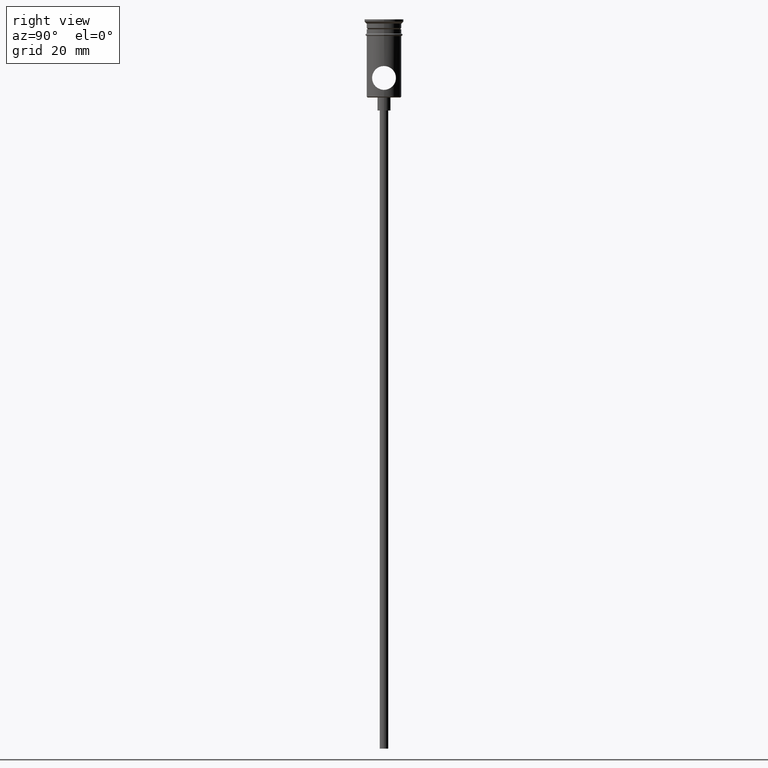
[diagram: clean part render]
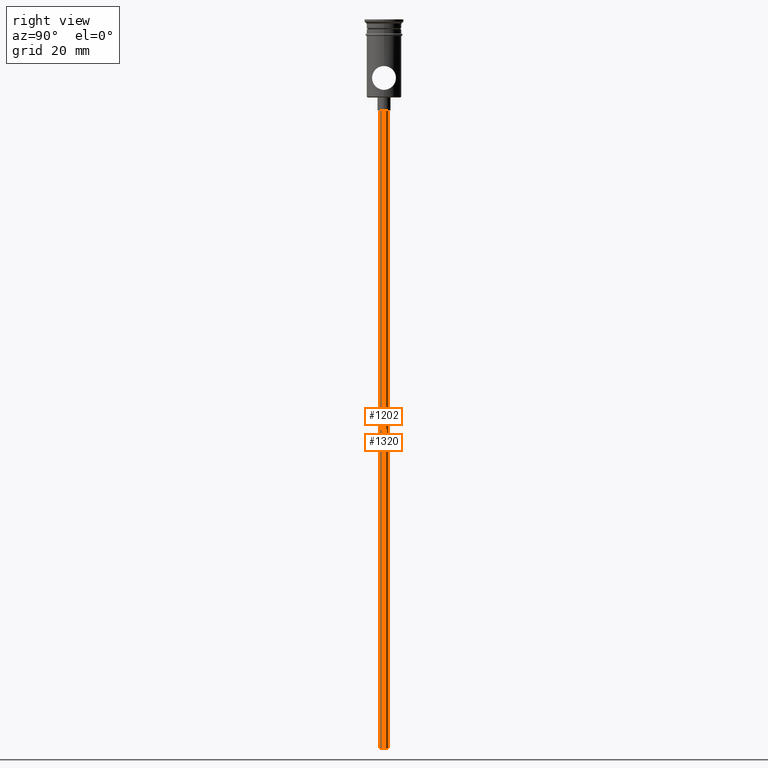
[diagram: same view with one multi-face feature highlighted, each face labeled with its STEP entity id]
A machine part, right view. The highlighted faces form ONE feature: a constant-radius fillet chain: 2 tangent blend faces with common blend radius 1 mm. The faces share edges in the B-rep.
Their STEP definitions:
[1] entity #1202 (Cylinder):
#84 = LINE ( 'NONE', #1390, #789 ) ;
#91 = DIRECTION ( 'NONE',  ( -0.000000000000000000, -0.000000000000000000, 1.000000000000000000 ) ) ;
#95 = DIRECTION ( 'NONE',  ( 0.000000000000000000, 0.000000000000000000, -1.000000000000000000 ) ) ;
#110 = CYLINDRICAL_SURFACE ( 'NONE', #341, 0.9999999999999997780 ) ;
#136 = CIRCLE ( 'NONE', #1124, 0.9999999999999997780 ) ;
#192 = ORIENTED_EDGE ( 'NONE', *, *, #667, .T. ) ;
#203 = CARTESIAN_POINT ( 'NONE',  ( 0.000000000000000000, 0.000000000000000000, -167.9999999999999716 ) ) ;
#231 = VERTEX_POINT ( 'NONE', #894 ) ;
#258 = VERTEX_POINT ( 'NONE', #983 ) ;
#341 = AXIS2_PLACEMENT_3D ( 'NONE', #203, #721, #869 ) ;
#406 = AXIS2_PLACEMENT_3D ( 'NONE', #1084, #95, #542 ) ;
#473 = EDGE_LOOP ( 'NONE', ( #1121, #1042, #751, #192 ) ) ;
#542 = DIRECTION ( 'NONE',  ( -1.000000000000000000, 0.000000000000000000, 0.000000000000000000 ) ) ;
#591 = DIRECTION ( 'NONE',  ( 0.000000000000000000, 0.000000000000000000, -1.000000000000000000 ) ) ;
#667 = EDGE_CURVE ( 'NONE', #258, #1197, #136, .T. ) ;
#708 = EDGE_CURVE ( 'NONE', #802, #258, #84, .T. ) ;
#721 = DIRECTION ( 'NONE',  ( -0.000000000000000000, -0.000000000000000000, 1.000000000000000000 ) ) ;
#751 = ORIENTED_EDGE ( 'NONE', *, *, #708, .T. ) ;
#789 = VECTOR ( 'NONE', #91, 1000.000000000000000 ) ;
#802 = VERTEX_POINT ( 'NONE', #1087 ) ;
#839 = DIRECTION ( 'NONE',  ( -1.000000000000000000, 0.000000000000000000, 0.000000000000000000 ) ) ;
#869 = DIRECTION ( 'NONE',  ( 1.000000000000000000, 0.000000000000000000, 0.000000000000000000 ) ) ;
#894 = CARTESIAN_POINT ( 'NONE',  ( -0.9999999999999997780, 1.224646799147352961E-16, -167.9999999999999716 ) ) ;
#902 = CIRCLE ( 'NONE', #406, 0.9999999999999997780 ) ;
#919 = EDGE_CURVE ( 'NONE', #802, #231, #902, .T. ) ;
#932 = CARTESIAN_POINT ( 'NONE',  ( -0.9999999999999997780, 1.224646799147352961E-16, -167.9999999999999716 ) ) ;
#983 = CARTESIAN_POINT ( 'NONE',  ( 0.9999999999999997780, 0.000000000000000000, -20.99999999999999645 ) ) ;
#991 = EDGE_CURVE ( 'NONE', #231, #1197, #1293, .T. ) ;
#1040 = CARTESIAN_POINT ( 'NONE',  ( 0.000000000000000000, 0.000000000000000000, -20.99999999999999645 ) ) ;
#1042 = ORIENTED_EDGE ( 'NONE', *, *, #919, .F. ) ;
#1070 = FACE_OUTER_BOUND ( 'NONE', #473, .T. ) ;
#1084 = CARTESIAN_POINT ( 'NONE',  ( 0.000000000000000000, 0.000000000000000000, -167.9999999999999716 ) ) ;
#1087 = CARTESIAN_POINT ( 'NONE',  ( 0.9999999999999997780, 0.000000000000000000, -167.9999999999999716 ) ) ;
#1104 = VECTOR ( 'NONE', #1382, 1000.000000000000000 ) ;
#1121 = ORIENTED_EDGE ( 'NONE', *, *, #991, .F. ) ;
#1124 = AXIS2_PLACEMENT_3D ( 'NONE', #1040, #591, #839 ) ;
#1197 = VERTEX_POINT ( 'NONE', #1296 ) ;
#1202 = ADVANCED_FACE ( 'NONE', ( #1070 ), #110, .T. ) ;
#1293 = LINE ( 'NONE', #932, #1104 ) ;
#1296 = CARTESIAN_POINT ( 'NONE',  ( -0.9999999999999997780, 1.224646799147352961E-16, -20.99999999999999645 ) ) ;
#1382 = DIRECTION ( 'NONE',  ( -0.000000000000000000, -0.000000000000000000, 1.000000000000000000 ) ) ;
#1390 = CARTESIAN_POINT ( 'NONE',  ( 0.9999999999999997780, 0.000000000000000000, -167.9999999999999716 ) ) ;
[2] entity #1320 (Cylinder):
#2 = CIRCLE ( 'NONE', #1276, 0.9999999999999997780 ) ;
#46 = CYLINDRICAL_SURFACE ( 'NONE', #74, 0.9999999999999997780 ) ;
#74 = AXIS2_PLACEMENT_3D ( 'NONE', #596, #666, #472 ) ;
#84 = LINE ( 'NONE', #1390, #789 ) ;
#91 = DIRECTION ( 'NONE',  ( -0.000000000000000000, -0.000000000000000000, 1.000000000000000000 ) ) ;
#231 = VERTEX_POINT ( 'NONE', #894 ) ;
#258 = VERTEX_POINT ( 'NONE', #983 ) ;
#472 = DIRECTION ( 'NONE',  ( 1.000000000000000000, 0.000000000000000000, 0.000000000000000000 ) ) ;
#534 = CIRCLE ( 'NONE', #1228, 0.9999999999999997780 ) ;
#596 = CARTESIAN_POINT ( 'NONE',  ( 0.000000000000000000, 0.000000000000000000, -167.9999999999999716 ) ) ;
#610 = ORIENTED_EDGE ( 'NONE', *, *, #1026, .F. ) ;
#644 = DIRECTION ( 'NONE',  ( -1.000000000000000000, 0.000000000000000000, 0.000000000000000000 ) ) ;
#666 = DIRECTION ( 'NONE',  ( -0.000000000000000000, -0.000000000000000000, 1.000000000000000000 ) ) ;
#708 = EDGE_CURVE ( 'NONE', #802, #258, #84, .T. ) ;
#766 = DIRECTION ( 'NONE',  ( 0.000000000000000000, 0.000000000000000000, -1.000000000000000000 ) ) ;
#789 = VECTOR ( 'NONE', #91, 1000.000000000000000 ) ;
#802 = VERTEX_POINT ( 'NONE', #1087 ) ;
#852 = EDGE_LOOP ( 'NONE', ( #610, #1239, #899, #1159 ) ) ;
#894 = CARTESIAN_POINT ( 'NONE',  ( -0.9999999999999997780, 1.224646799147352961E-16, -167.9999999999999716 ) ) ;
#896 = FACE_OUTER_BOUND ( 'NONE', #852, .T. ) ;
#899 = ORIENTED_EDGE ( 'NONE', *, *, #1005, .T. ) ;
#932 = CARTESIAN_POINT ( 'NONE',  ( -0.9999999999999997780, 1.224646799147352961E-16, -167.9999999999999716 ) ) ;
#983 = CARTESIAN_POINT ( 'NONE',  ( 0.9999999999999997780, 0.000000000000000000, -20.99999999999999645 ) ) ;
#991 = EDGE_CURVE ( 'NONE', #231, #1197, #1293, .T. ) ;
#1005 = EDGE_CURVE ( 'NONE', #1197, #258, #534, .T. ) ;
#1026 = EDGE_CURVE ( 'NONE', #231, #802, #2, .T. ) ;
#1087 = CARTESIAN_POINT ( 'NONE',  ( 0.9999999999999997780, 0.000000000000000000, -167.9999999999999716 ) ) ;
#1104 = VECTOR ( 'NONE', #1382, 1000.000000000000000 ) ;
#1159 = ORIENTED_EDGE ( 'NONE', *, *, #708, .F. ) ;
#1161 = DIRECTION ( 'NONE',  ( 0.000000000000000000, 0.000000000000000000, -1.000000000000000000 ) ) ;
#1197 = VERTEX_POINT ( 'NONE', #1296 ) ;
#1228 = AXIS2_PLACEMENT_3D ( 'NONE', #1271, #1161, #644 ) ;
#1239 = ORIENTED_EDGE ( 'NONE', *, *, #991, .T. ) ;
#1271 = CARTESIAN_POINT ( 'NONE',  ( 0.000000000000000000, 0.000000000000000000, -20.99999999999999645 ) ) ;
#1276 = AXIS2_PLACEMENT_3D ( 'NONE', #1307, #766, #1406 ) ;
#1293 = LINE ( 'NONE', #932, #1104 ) ;
#1296 = CARTESIAN_POINT ( 'NONE',  ( -0.9999999999999997780, 1.224646799147352961E-16, -20.99999999999999645 ) ) ;
#1307 = CARTESIAN_POINT ( 'NONE',  ( 0.000000000000000000, 0.000000000000000000, -167.9999999999999716 ) ) ;
#1320 = ADVANCED_FACE ( 'NONE', ( #896 ), #46, .T. ) ;
#1382 = DIRECTION ( 'NONE',  ( -0.000000000000000000, -0.000000000000000000, 1.000000000000000000 ) ) ;
#1390 = CARTESIAN_POINT ( 'NONE',  ( 0.9999999999999997780, 0.000000000000000000, -167.9999999999999716 ) ) ;
#1406 = DIRECTION ( 'NONE',  ( -1.000000000000000000, 0.000000000000000000, 0.000000000000000000 ) ) ;